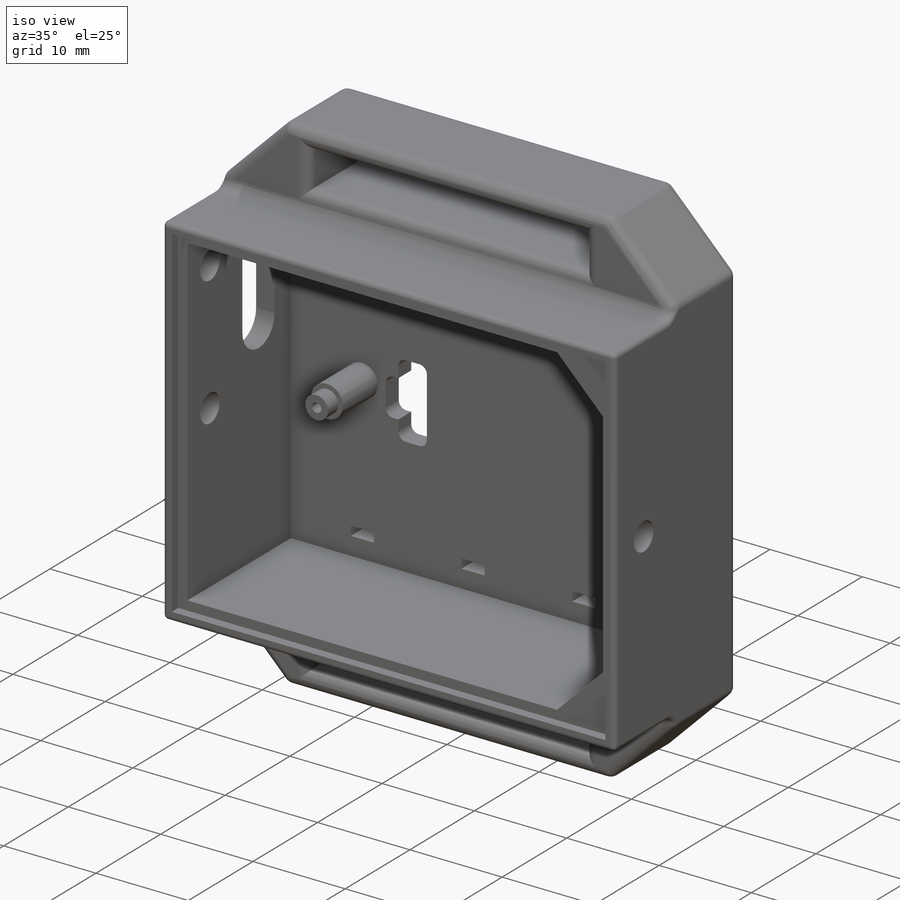
[diagram: iso view]
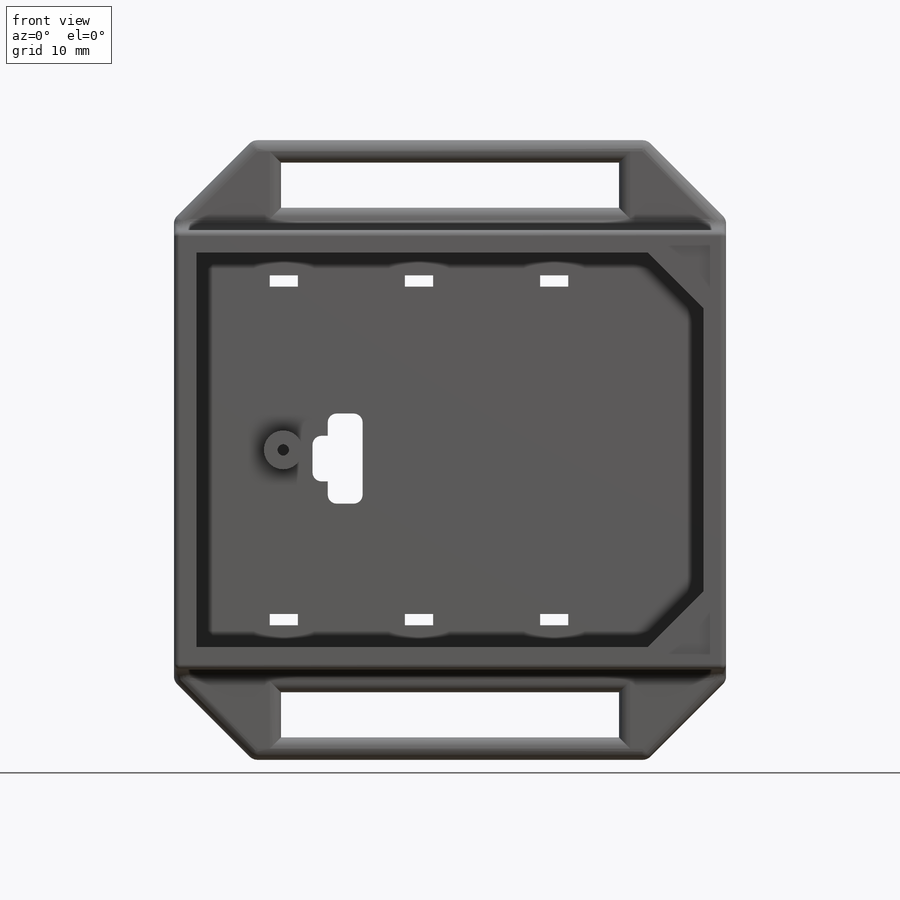
[diagram: front view]
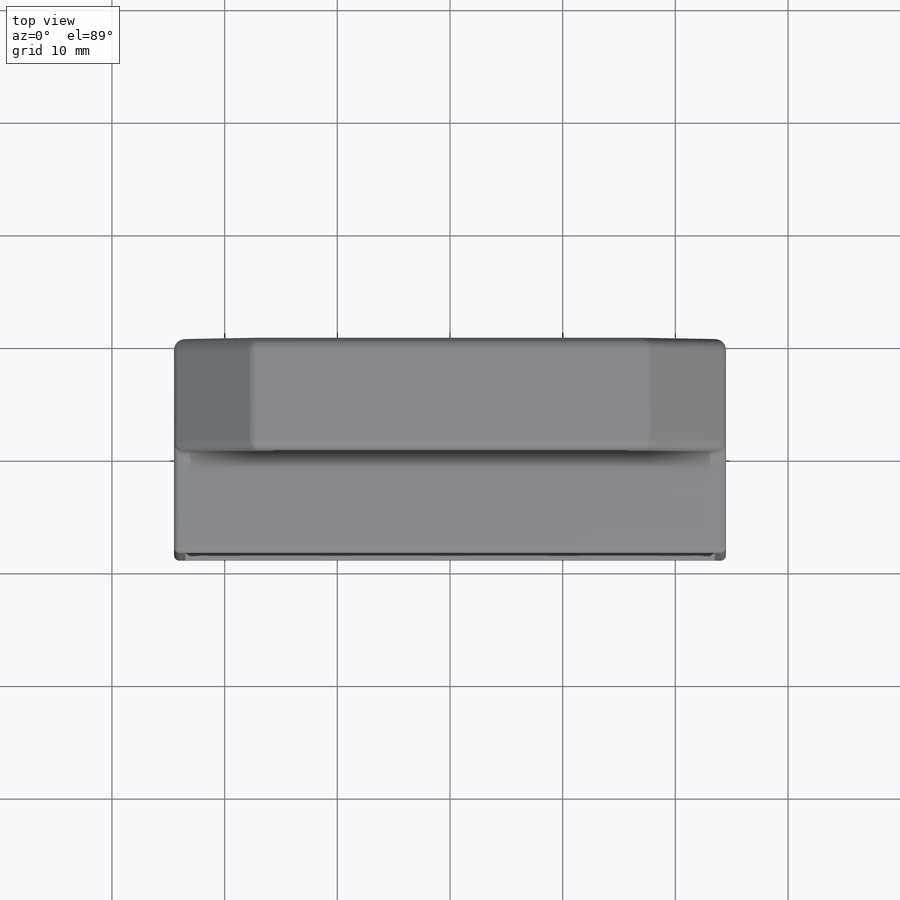
[diagram: top view]
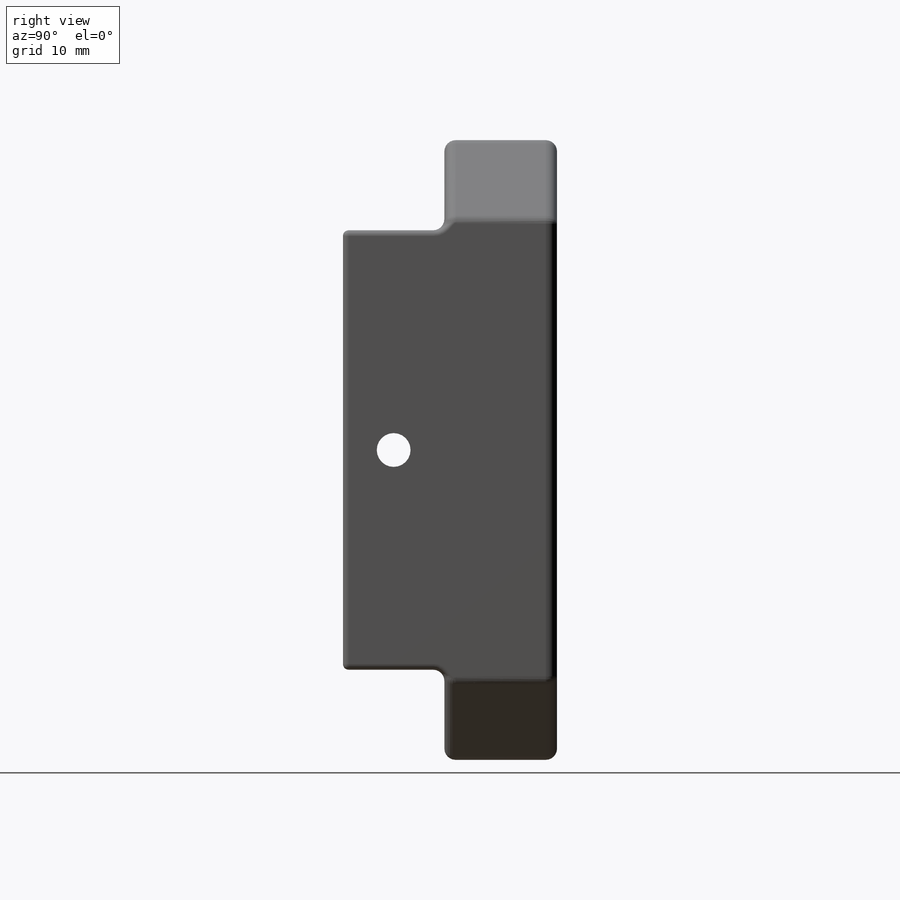
[diagram: right view]
SOLIDWORKS PART (.sldprt)
format: sldprt  version: not decoded by parser v0  size: 881,152 bytes
history: native  units: mm
features: sketch x21, fillet x15, extrude x10, cut_extrude x10, plane x3, material x1 (+10 scaffold rows collapsed)
feature tree (70):
  scaffold x10  (default folders/planes/origin — collapsed)
  material  "Material <not specified>"
  plane  "Alzado"
  plane  "Planta"
  plane  "Vista lateral"
  sketch  "Croquis2"  dims[c1.D1=45.0mm c1.D2=35.0mm c1.D3=49.0mm c1.D4=39.0mm c1.D5=49.0mm c1.D6=8.0mm c1.D7=8.0mm c1.D8=4.0mm c1.D9=30.0mm c1.D10=30.0mm c1.D11=4.0mm c1.D12=7.0mm c1.D13=35.0mm c2.D13=45.0deg c2.D14=45.0mm c3.D14=45.0deg c4.D14=~3.323871mm c5.D14=~102.408286deg c6.D14=7.0mm c6.D19=45.0mm c7.D19=45.0deg c7.D20=5.0mm c7.D21=45.0mm c8.D21=45.0deg c8.D22=6.0mm c8.D23=5.5mm c8.D20=37.0mm c9.D21=47.0mm]
  extrude  "Saliente-Extruir3"  Depth=2mm
  extrude  "Saliente-Extruir4"  [1 undecoded]
  sketch  "Croquis2<7>"  dims[D1=18.0mm]
  extrude  "Saliente-Extruir5"  [1 undecoded]
  sketch  "Croquis2<8>"  dims[D1=19.0mm]
  extrude  "Saliente-Extruir7"  [1 undecoded]
  sketch  "Croquis2<10>"  dims[D1=18.0mm]
  extrude  "Saliente-Extruir8"  [1 undecoded]
  sketch  "Croquis2<11>"  dims[D1=10.0mm]
  fillet  "Redondeo1"  Radius=1mm
  fillet  "Redondeo2"  Radius=1mm
  fillet  "Redondeo3"  Radius=1mm
  fillet  "Redondeo4"  Radius=1mm
  fillet  "Redondeo5"  Radius=1mm
  fillet  "Redondeo6"  Radius=1mm
  fillet  "Redondeo7"  Radius=1mm
  fillet  "Redondeo8"  Radius=1mm
  fillet  "Redondeo9"  Radius=1mm
  fillet  "Redondeo10"  Radius=1mm
  fillet  "Redondeo11"  Radius=1mm
  fillet  "Redondeo12"  Radius=1mm
  fillet  "Redondeo13"  Radius=1mm
  fillet  "Redondeo14"  Radius=0.5mm
  fillet  "Redondeo15"  Radius=0.5mm
  extrude  "Saliente-Extruir9"  [1 undecoded]
  sketch  "Croquis2<12>"  dims[D1=18.0mm]
  sketch  "Croquis4"
  cut_extrude  "Cortar-Extruir1"  [1 undecoded]
  sketch  "Croquis5"  dims[D1=3.0mm D2=7.0mm]
  sketch  "Croquis9"  dims[D1=~4.949747mm]
  cut_extrude  "Cortar-Extruir9"  [1 undecoded]
  sketch  "Croquis12"  dims[c1.D1=7.0mm c1.D2=7.0mm c2.D2=45.0deg]
  extrude  "Saliente-Extruir10"  [1 undecoded]
  sketch  "Croquis13"
  cut_extrude  "Cortar-Extruir10"  [1 undecoded]
  sketch  "Croquis15"  dims[c1.D1=7.0mm c1.D2=7.0mm c2.D2=45.0deg]
  extrude  "Saliente-Extruir11"  [1 undecoded]
  sketch  "Croquis16"
  extrude  "Saliente-Extruir13"  Depth=7mm
  sketch  "Croquis17"
  extrude  "Saliente-Extruir14"  Depth=5.4mm
  sketch  "Croquis18"
  cut_extrude  "Cortar-Extruir11"  Depth=5mm
  sketch  "Croquis19"  dims[D1=~1.019443mm]
  cut_extrude  "Cortar-Extruir12"  Depth=10mm
  sketch  "Croquis22"
  cut_extrude  "Cortar-Extruir13"  [1 undecoded]
  sketch  "Croquis23"  dims[D2=~2.743197mm D1=3.5mm]
  cut_extrude  "Cortar-Extruir14"  Depth=10mm
  sketch  "Sketch3"
  cut_extrude  "Cut-Extrude1"  [1 undecoded]
  sketch  "Sketch5"  dims[D1=3.0mm D2=4.0mm D3=5.0mm]
  cut_extrude  "Cut-Extrude3"  [1 undecoded]
  sketch  "Sketch6"  dims[D1=5.0mm D2=7.0mm D3=2.5mm D4=5.0mm]
  cut_extrude  "Cut-Extrude4"  [1 undecoded]
decode coverage: 35 of 56 modeling features carry decoded parameters
note: ~ marks probable driven/reference dimensions
note: 14 parameter values undecoded
summary: no parameter record found for 14 features
note: suppression state not decoded; provenance and decode notes live in map.json
